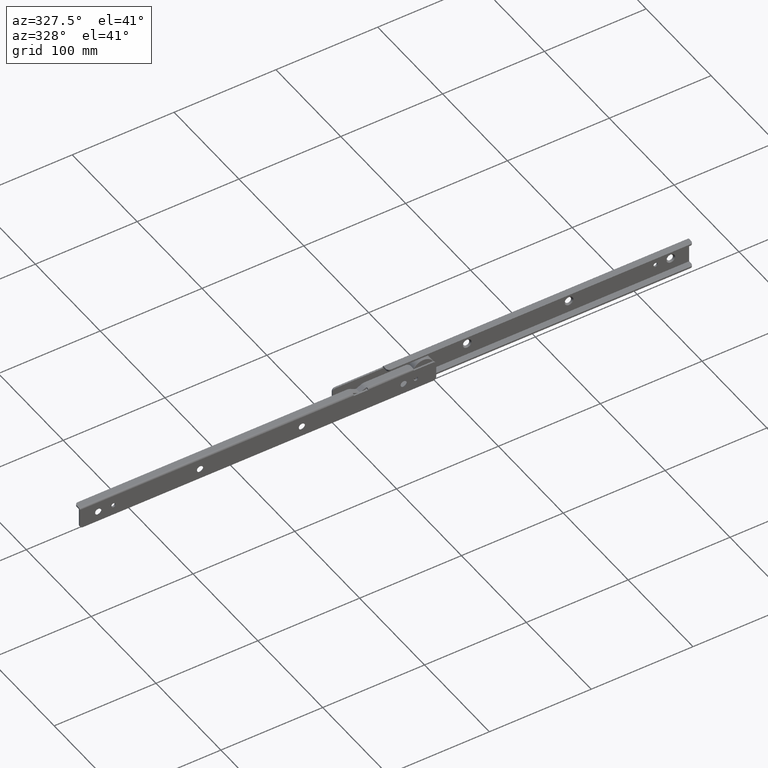
[diagram: clean part render]
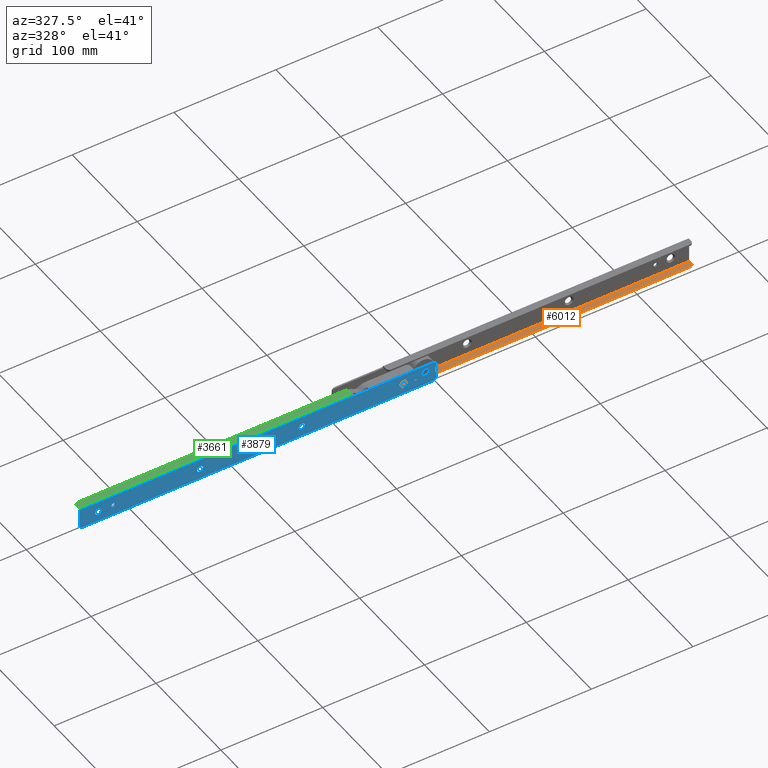
[diagram: same view with three faces highlighted in distinct colors, each labeled with its STEP entity id]
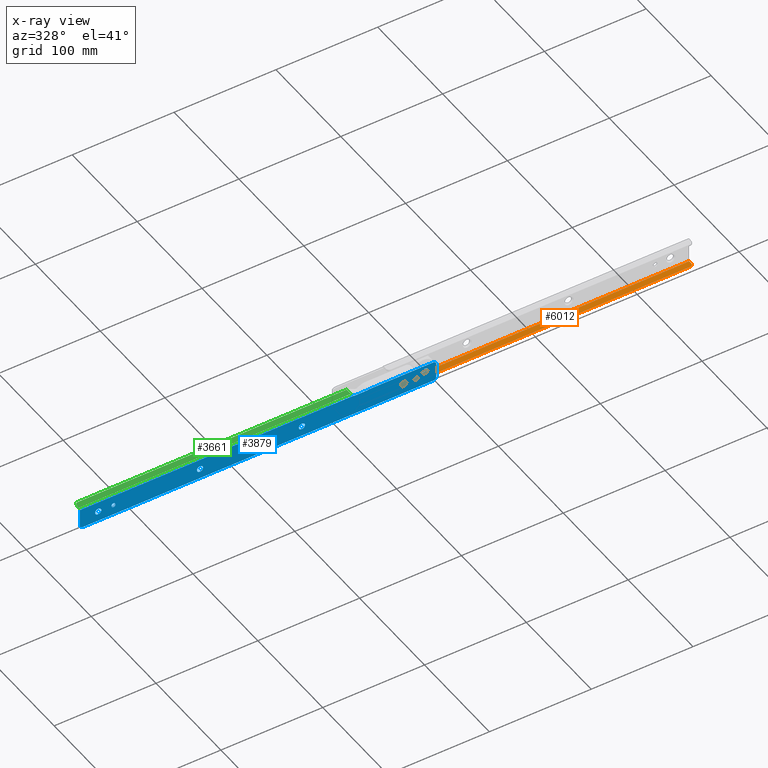
[diagram: x-ray of the same camera — body ghosted, the three highlighted faces saturated]
A machine part, auxiliary view with three faces highlighted in distinct colors.
The next image is the same camera in x-ray (body ghosted, the three faces saturated) — at least one of them is partly hidden behind the body in this view.
Their STEP definitions:

[orange] entity #6012 — the highlighted face is a freeform B-spline surface patch.
#5328=CARTESIAN_POINT('',(22.0,-5.0,-18.600000000000001));
#5329=VERTEX_POINT('',#5328);
#5330=CARTESIAN_POINT('',(25.0,-8.0,-18.600000000000001));
#5331=VERTEX_POINT('',#5330);
#5332=CARTESIAN_POINT('',(22.0,-5.0,-18.600000000000001));
#5333=CARTESIAN_POINT('',(22.000000000000007,-8.0,-18.599999999999991));
#5334=CARTESIAN_POINT('',(25.0,-8.0,-18.600000000000001));
#5342=(BOUNDED_CURVE()B_SPLINE_CURVE(2,(#5332,#5333,#5334),.UNSPECIFIED.,.F.,.U.)CURVE()GEOMETRIC_REPRESENTATION_ITEM()QUASI_UNIFORM_CURVE()RATIONAL_B_SPLINE_CURVE((1.0,0.707106781186548,1.0))REPRESENTATION_ITEM(''));
#5343=EDGE_CURVE('',#5329,#5331,#5342,.T.);
#5389=CARTESIAN_POINT('',(347.0,-8.0,-18.600000000000001));
#5390=VERTEX_POINT('',#5389);
#5391=CARTESIAN_POINT('',(350.0,-5.0,-18.600000000000001));
#5392=VERTEX_POINT('',#5391);
#5393=CARTESIAN_POINT('',(347.0,-8.0,-18.600000000000001));
#5394=CARTESIAN_POINT('',(349.999999999999890,-8.0,-18.599999999999991));
#5395=CARTESIAN_POINT('',(350.0,-5.0,-18.600000000000001));
#5403=(BOUNDED_CURVE()B_SPLINE_CURVE(2,(#5393,#5394,#5395),.UNSPECIFIED.,.F.,.U.)CURVE()GEOMETRIC_REPRESENTATION_ITEM()QUASI_UNIFORM_CURVE()RATIONAL_B_SPLINE_CURVE((1.0,0.707106781186548,1.0))REPRESENTATION_ITEM(''));
#5404=EDGE_CURVE('',#5390,#5392,#5403,.T.);
#5689=CARTESIAN_POINT('',(22.0,-1.599999999999935,-18.600000000000001));
#5690=VERTEX_POINT('',#5689);
#5725=CARTESIAN_POINT('',(22.0,-1.599999999999935,-18.600000000000001));
#5726=CARTESIAN_POINT('',(22.0,-5.0,-18.600000000000001));
#5727=QUASI_UNIFORM_CURVE('',1,(#5725,#5726),.UNSPECIFIED.,.F.,.U.);
#5728=EDGE_CURVE('',#5690,#5329,#5727,.T.);
#5787=CARTESIAN_POINT('',(350.0,-1.599999999999910,-18.600000000000001));
#5788=VERTEX_POINT('',#5787);
#5794=CARTESIAN_POINT('',(350.0,-1.599999999999910,-18.600000000000001));
#5795=CARTESIAN_POINT('',(350.0,-5.0,-18.600000000000001));
#5796=QUASI_UNIFORM_CURVE('',1,(#5794,#5795),.UNSPECIFIED.,.F.,.U.);
#5797=EDGE_CURVE('',#5788,#5392,#5796,.T.);
#5986=CARTESIAN_POINT('',(347.0,-8.0,-18.600000000000001));
#5987=CARTESIAN_POINT('',(25.0,-8.0,-18.600000000000001));
#5988=QUASI_UNIFORM_CURVE('',1,(#5986,#5987),.UNSPECIFIED.,.F.,.U.);
#5989=EDGE_CURVE('',#5390,#5331,#5988,.T.);
#5995=CARTESIAN_POINT('',(366.383599364272300,-8.319679987595562,-18.600000000000001));
#5996=CARTESIAN_POINT('',(5.616391838082091,-8.319679987595562,-18.600000000000001));
#5997=CARTESIAN_POINT('',(366.383599364272300,-1.280319840742970,-18.600000000000001));
#5998=CARTESIAN_POINT('',(5.616391838082091,-1.280319840742970,-18.600000000000001));
#5999=B_SPLINE_SURFACE_WITH_KNOTS('',1,1,((#5995,#5997),(#5996,#5998)),.UNSPECIFIED.,.F.,.F.,.U.,(2,2),(2,2),(0.0,360.767207526190190),(0.0,7.039360146852591),.UNSPECIFIED.);
#6000=ORIENTED_EDGE('',*,*,#5989,.F.);
#6001=ORIENTED_EDGE('',*,*,#5404,.T.);
#6002=ORIENTED_EDGE('',*,*,#5797,.F.);
#6003=CARTESIAN_POINT('',(350.0,-1.599999999999910,-18.600000000000001));
#6004=CARTESIAN_POINT('',(22.0,-1.599999999999935,-18.600000000000001));
#6005=QUASI_UNIFORM_CURVE('',1,(#6003,#6004),.UNSPECIFIED.,.F.,.U.);
#6006=EDGE_CURVE('',#5788,#5690,#6005,.T.);
#6007=ORIENTED_EDGE('',*,*,#6006,.T.);
#6008=ORIENTED_EDGE('',*,*,#5728,.T.);
#6009=ORIENTED_EDGE('',*,*,#5343,.T.);
#6010=EDGE_LOOP('',(#6000,#6001,#6002,#6007,#6008,#6009));
#6011=FACE_OUTER_BOUND('',#6010,.T.);
#6012=ADVANCED_FACE('',(#6011),#5999,.F.);

[blue] entity #3879 — the highlighted face is a freeform B-spline surface patch.
#1401=CARTESIAN_POINT('',(65.990752002969700,-11.999999993834500,-11.835377328537801));
#1402=VERTEX_POINT('',#1401);
#1408=CARTESIAN_POINT('',(63.0,-12.0,-8.599999999999799));
#1409=VERTEX_POINT('',#1408);
#1410=CARTESIAN_POINT('',(65.990752002969700,-11.999999993834498,-11.835377328537804));
#1411=CARTESIAN_POINT('',(66.000000000000014,-12.000000000000005,-11.717870362174331));
#1412=CARTESIAN_POINT('',(66.0,-12.0,-11.599999999999801));
#1413=CARTESIAN_POINT('',(66.0,-12.0,-8.599999999999799));
#1414=CARTESIAN_POINT('',(63.0,-12.0,-8.599999999999799));
#1422=(BOUNDED_CURVE()B_SPLINE_CURVE(2,(#1410,#1411,#1412,#1413,#1414),.UNSPECIFIED.,.F.,.U.)B_SPLINE_CURVE_WITH_KNOTS((3,2,3),(0.736331295937097,0.750000000000000,1.0),.UNSPECIFIED.)CURVE()GEOMETRIC_REPRESENTATION_ITEM()RATIONAL_B_SPLINE_CURVE((0.969723346372311,0.983986117080031,1.0,0.707106781186548,1.0))REPRESENTATION_ITEM(''));
#1423=EDGE_CURVE('',#1402,#1409,#1422,.T.);
#1425=CARTESIAN_POINT('',(60.009247997030300,-11.999999993834500,-11.364622671461790));
#1426=VERTEX_POINT('',#1425);
#1427=CARTESIAN_POINT('',(63.0,-12.0,-8.599999999999799));
#1428=CARTESIAN_POINT('',(60.226828601223161,-12.0,-8.599999999999799));
#1429=CARTESIAN_POINT('',(60.009247997030307,-11.999999993834498,-11.364622671461788));
#1437=(BOUNDED_CURVE()B_SPLINE_CURVE(2,(#1427,#1428,#1429),.UNSPECIFIED.,.F.,.U.)B_SPLINE_CURVE_WITH_KNOTS((3,3),(0.0,0.236331295937097),.UNSPECIFIED.)CURVE()GEOMETRIC_REPRESENTATION_ITEM()RATIONAL_B_SPLINE_CURVE((1.0,0.723120664106517,0.969723346372310))REPRESENTATION_ITEM(''));
#1438=EDGE_CURVE('',#1409,#1426,#1437,.T.);
#1484=CARTESIAN_POINT('',(63.0,-12.0,-14.599999999999801));
#1485=VERTEX_POINT('',#1484);
#1486=CARTESIAN_POINT('',(60.009247997030300,-11.999999993834496,-11.364622671461788));
#1487=CARTESIAN_POINT('',(60.0,-11.999999999999996,-11.482129637825269));
#1488=CARTESIAN_POINT('',(60.0,-12.0,-11.599999999999801));
#1489=CARTESIAN_POINT('',(60.0,-12.0,-14.599999999999794));
#1490=CARTESIAN_POINT('',(63.0,-12.0,-14.599999999999801));
#1498=(BOUNDED_CURVE()B_SPLINE_CURVE(2,(#1486,#1487,#1488,#1489,#1490),.UNSPECIFIED.,.F.,.U.)B_SPLINE_CURVE_WITH_KNOTS((3,2,3),(0.236331295937097,0.250000000000000,0.500000000000000),.UNSPECIFIED.)CURVE()GEOMETRIC_REPRESENTATION_ITEM()RATIONAL_B_SPLINE_CURVE((0.969723346372310,0.983986117080031,1.0,0.707106781186548,1.0))REPRESENTATION_ITEM(''));
#1499=EDGE_CURVE('',#1426,#1485,#1498,.T.);
#1501=CARTESIAN_POINT('',(63.0,-12.0,-14.599999999999801));
#1502=CARTESIAN_POINT('',(65.773171398776867,-12.0,-14.599999999999802));
#1503=CARTESIAN_POINT('',(65.990752002969700,-11.999999993834498,-11.835377328537804));
#1511=(BOUNDED_CURVE()B_SPLINE_CURVE(2,(#1501,#1502,#1503),.UNSPECIFIED.,.F.,.U.)B_SPLINE_CURVE_WITH_KNOTS((3,3),(0.500000000000000,0.736331295937098),.UNSPECIFIED.)CURVE()GEOMETRIC_REPRESENTATION_ITEM()RATIONAL_B_SPLINE_CURVE((1.0,0.723120664106515,0.969723346372313))REPRESENTATION_ITEM(''));
#1512=EDGE_CURVE('',#1485,#1402,#1511,.T.);
#1583=CARTESIAN_POINT('',(-34.009247997030300,-11.999999993834489,-11.835377328537801));
#1584=VERTEX_POINT('',#1583);
#1590=CARTESIAN_POINT('',(-37.0,-12.0,-8.599999999999799));
#1591=VERTEX_POINT('',#1590);
#1592=CARTESIAN_POINT('',(-34.009247997030300,-11.999999993834493,-11.835377328537806));
#1593=CARTESIAN_POINT('',(-33.999999999999993,-12.000000000000007,-11.717870362174333));
#1594=CARTESIAN_POINT('',(-33.999999999999993,-12.0,-11.599999999999801));
#1595=CARTESIAN_POINT('',(-33.999999999999993,-12.0,-8.599999999999799));
#1596=CARTESIAN_POINT('',(-37.0,-12.0,-8.599999999999799));
#1604=(BOUNDED_CURVE()B_SPLINE_CURVE(2,(#1592,#1593,#1594,#1595,#1596),.UNSPECIFIED.,.F.,.U.)B_SPLINE_CURVE_WITH_KNOTS((3,2,3),(0.736331295937097,0.750000000000000,1.0),.UNSPECIFIED.)CURVE()GEOMETRIC_REPRESENTATION_ITEM()RATIONAL_B_SPLINE_CURVE((0.969723346372311,0.983986117080031,1.0,0.707106781186548,1.0))REPRESENTATION_ITEM(''));
#1605=EDGE_CURVE('',#1584,#1591,#1604,.T.);
#1607=CARTESIAN_POINT('',(-39.990752002969700,-11.999999993834500,-11.364622671461790));
#1608=VERTEX_POINT('',#1607);
#1609=CARTESIAN_POINT('',(-37.0,-12.0,-8.599999999999799));
#1610=CARTESIAN_POINT('',(-39.773171398776846,-12.0,-8.599999999999799));
#1611=CARTESIAN_POINT('',(-39.990752002969693,-11.999999993834496,-11.364622671461799));
#1619=(BOUNDED_CURVE()B_SPLINE_CURVE(2,(#1609,#1610,#1611),.UNSPECIFIED.,.F.,.U.)B_SPLINE_CURVE_WITH_KNOTS((3,3),(0.0,0.236331295937097),.UNSPECIFIED.)CURVE()GEOMETRIC_REPRESENTATION_ITEM()RATIONAL_B_SPLINE_CURVE((1.0,0.723120664106517,0.969723346372310))REPRESENTATION_ITEM(''));
#1620=EDGE_CURVE('',#1591,#1608,#1619,.T.);
#1666=CARTESIAN_POINT('',(-37.0,-12.0,-14.599999999999801));
#1667=VERTEX_POINT('',#1666);
#1668=CARTESIAN_POINT('',(-39.990752002969700,-11.999999993834495,-11.364622671461795));
#1669=CARTESIAN_POINT('',(-40.0,-11.999999999999996,-11.482129637825267));
#1670=CARTESIAN_POINT('',(-40.0,-12.0,-11.599999999999801));
#1671=CARTESIAN_POINT('',(-39.999999999999993,-12.0,-14.599999999999794));
#1672=CARTESIAN_POINT('',(-37.0,-12.0,-14.599999999999801));
#1680=(BOUNDED_CURVE()B_SPLINE_CURVE(2,(#1668,#1669,#1670,#1671,#1672),.UNSPECIFIED.,.F.,.U.)B_SPLINE_CURVE_WITH_KNOTS((3,2,3),(0.236331295937097,0.250000000000000,0.500000000000000),.UNSPECIFIED.)CURVE()GEOMETRIC_REPRESENTATION_ITEM()RATIONAL_B_SPLINE_CURVE((0.969723346372311,0.983986117080031,1.0,0.707106781186548,1.0))REPRESENTATION_ITEM(''));
#1681=EDGE_CURVE('',#1608,#1667,#1680,.T.);
#1683=CARTESIAN_POINT('',(-37.0,-12.0,-14.599999999999801));
#1684=CARTESIAN_POINT('',(-34.226828601223126,-12.0,-14.599999999999802));
#1685=CARTESIAN_POINT('',(-34.009247997030307,-11.999999993834489,-11.835377328537804));
#1693=(BOUNDED_CURVE()B_SPLINE_CURVE(2,(#1683,#1684,#1685),.UNSPECIFIED.,.F.,.U.)B_SPLINE_CURVE_WITH_KNOTS((3,3),(0.500000000000000,0.736331295937098),.UNSPECIFIED.)CURVE()GEOMETRIC_REPRESENTATION_ITEM()RATIONAL_B_SPLINE_CURVE((1.0,0.723120664106515,0.969723346372313))REPRESENTATION_ITEM(''));
#1694=EDGE_CURVE('',#1667,#1584,#1693,.T.);
#1765=CARTESIAN_POINT('',(-134.009247997030290,-11.999999993834489,-11.835377328537810));
#1766=VERTEX_POINT('',#1765);
#1772=CARTESIAN_POINT('',(-137.0,-12.0,-8.599999999999799));
#1773=VERTEX_POINT('',#1772);
#1774=CARTESIAN_POINT('',(-134.009247997030290,-11.999999993834489,-11.835377328537804));
#1775=CARTESIAN_POINT('',(-134.000000000000060,-11.999999999999998,-11.717870362174326));
#1776=CARTESIAN_POINT('',(-134.0,-12.0,-11.599999999999801));
#1777=CARTESIAN_POINT('',(-134.0,-12.0,-8.599999999999799));
#1778=CARTESIAN_POINT('',(-137.0,-12.0,-8.599999999999799));
#1786=(BOUNDED_CURVE()B_SPLINE_CURVE(2,(#1774,#1775,#1776,#1777,#1778),.UNSPECIFIED.,.F.,.U.)B_SPLINE_CURVE_WITH_KNOTS((3,2,3),(0.736331295937097,0.750000000000000,1.0),.UNSPECIFIED.)CURVE()GEOMETRIC_REPRESENTATION_ITEM()RATIONAL_B_SPLINE_CURVE((0.969723346372310,0.983986117080031,1.0,0.707106781186548,1.0))REPRESENTATION_ITEM(''));
#1787=EDGE_CURVE('',#1766,#1773,#1786,.T.);
#1789=CARTESIAN_POINT('',(-139.990752002969710,-11.999999993834500,-11.364622671461790));
#1790=VERTEX_POINT('',#1789);
#1791=CARTESIAN_POINT('',(-137.0,-12.0,-8.599999999999799));
#1792=CARTESIAN_POINT('',(-139.773171398776900,-12.0,-8.599999999999799));
#1793=CARTESIAN_POINT('',(-139.990752002969710,-11.999999993834496,-11.364622671461799));
#1801=(BOUNDED_CURVE()B_SPLINE_CURVE(2,(#1791,#1792,#1793),.UNSPECIFIED.,.F.,.U.)B_SPLINE_CURVE_WITH_KNOTS((3,3),(0.0,0.236331295937097),.UNSPECIFIED.)CURVE()GEOMETRIC_REPRESENTATION_ITEM()RATIONAL_B_SPLINE_CURVE((1.0,0.723120664106517,0.969723346372310))REPRESENTATION_ITEM(''));
#1802=EDGE_CURVE('',#1773,#1790,#1801,.T.);
#1848=CARTESIAN_POINT('',(-137.0,-12.0,-14.599999999999801));
#1849=VERTEX_POINT('',#1848);
#1850=CARTESIAN_POINT('',(-139.990752002969690,-11.999999993834495,-11.364622671461795));
#1851=CARTESIAN_POINT('',(-140.000000000000060,-11.999999999999996,-11.482129637825267));
#1852=CARTESIAN_POINT('',(-140.0,-12.0,-11.599999999999801));
#1853=CARTESIAN_POINT('',(-140.0,-12.0,-14.599999999999794));
#1854=CARTESIAN_POINT('',(-137.0,-12.0,-14.599999999999801));
#1862=(BOUNDED_CURVE()B_SPLINE_CURVE(2,(#1850,#1851,#1852,#1853,#1854),.UNSPECIFIED.,.F.,.U.)B_SPLINE_CURVE_WITH_KNOTS((3,2,3),(0.236331295937097,0.250000000000000,0.500000000000000),.UNSPECIFIED.)CURVE()GEOMETRIC_REPRESENTATION_ITEM()RATIONAL_B_SPLINE_CURVE((0.969723346372311,0.983986117080031,1.0,0.707106781186548,1.0))REPRESENTATION_ITEM(''));
#1863=EDGE_CURVE('',#1790,#1849,#1862,.T.);
#1865=CARTESIAN_POINT('',(-137.0,-12.0,-14.599999999999801));
#1866=CARTESIAN_POINT('',(-134.226828601223130,-12.0,-14.599999999999802));
#1867=CARTESIAN_POINT('',(-134.009247997030260,-11.999999993834489,-11.835377328537804));
#1875=(BOUNDED_CURVE()B_SPLINE_CURVE(2,(#1865,#1866,#1867),.UNSPECIFIED.,.F.,.U.)B_SPLINE_CURVE_WITH_KNOTS((3,3),(0.500000000000000,0.736331295937098),.UNSPECIFIED.)CURVE()GEOMETRIC_REPRESENTATION_ITEM()RATIONAL_B_SPLINE_CURVE((1.0,0.723120664106515,0.969723346372313))REPRESENTATION_ITEM(''));
#1876=EDGE_CURVE('',#1849,#1766,#1875,.T.);
#1947=CARTESIAN_POINT('',(-234.009247997030290,-11.999999993834500,-11.835377328537801));
#1948=VERTEX_POINT('',#1947);
#1954=CARTESIAN_POINT('',(-237.0,-12.0,-8.599999999999799));
#1955=VERTEX_POINT('',#1954);
#1956=CARTESIAN_POINT('',(-234.009247997030340,-11.999999993834493,-11.835377328537806));
#1957=CARTESIAN_POINT('',(-234.0,-12.000000000000007,-11.717870362174333));
#1958=CARTESIAN_POINT('',(-234.0,-12.0,-11.599999999999801));
#1959=CARTESIAN_POINT('',(-233.999999999999940,-12.0,-8.599999999999799));
#1960=CARTESIAN_POINT('',(-237.0,-12.0,-8.599999999999799));
#1968=(BOUNDED_CURVE()B_SPLINE_CURVE(2,(#1956,#1957,#1958,#1959,#1960),.UNSPECIFIED.,.F.,.U.)B_SPLINE_CURVE_WITH_KNOTS((3,2,3),(0.736331295937097,0.750000000000000,1.0),.UNSPECIFIED.)CURVE()GEOMETRIC_REPRESENTATION_ITEM()RATIONAL_B_SPLINE_CURVE((0.969723346372311,0.983986117080031,1.0,0.707106781186548,1.0))REPRESENTATION_ITEM(''));
#1969=EDGE_CURVE('',#1948,#1955,#1968,.T.);
#1971=CARTESIAN_POINT('',(-239.990752002969710,-11.999999993834489,-11.364622671461790));
#1972=VERTEX_POINT('',#1971);
#1973=CARTESIAN_POINT('',(-237.0,-12.0,-8.599999999999799));
#1974=CARTESIAN_POINT('',(-239.773171398776780,-12.0,-8.599999999999799));
#1975=CARTESIAN_POINT('',(-239.990752002969660,-11.999999993834495,-11.364622671461797));
#1983=(BOUNDED_CURVE()B_SPLINE_CURVE(2,(#1973,#1974,#1975),.UNSPECIFIED.,.F.,.U.)B_SPLINE_CURVE_WITH_KNOTS((3,3),(0.0,0.236331295937097),.UNSPECIFIED.)CURVE()GEOMETRIC_REPRESENTATION_ITEM()RATIONAL_B_SPLINE_CURVE((1.0,0.723120664106517,0.969723346372310))REPRESENTATION_ITEM(''));
#1984=EDGE_CURVE('',#1955,#1972,#1983,.T.);
#2030=CARTESIAN_POINT('',(-237.0,-12.0,-14.599999999999801));
#2031=VERTEX_POINT('',#2030);
#2032=CARTESIAN_POINT('',(-239.990752002969690,-11.999999993834491,-11.364622671461794));
#2033=CARTESIAN_POINT('',(-240.0,-12.000000000000005,-11.482129637825278));
#2034=CARTESIAN_POINT('',(-240.0,-12.0,-11.599999999999801));
#2035=CARTESIAN_POINT('',(-240.0,-12.0,-14.599999999999794));
#2036=CARTESIAN_POINT('',(-237.0,-12.0,-14.599999999999801));
#2044=(BOUNDED_CURVE()B_SPLINE_CURVE(2,(#2032,#2033,#2034,#2035,#2036),.UNSPECIFIED.,.F.,.U.)B_SPLINE_CURVE_WITH_KNOTS((3,2,3),(0.236331295937097,0.250000000000000,0.500000000000000),.UNSPECIFIED.)CURVE()GEOMETRIC_REPRESENTATION_ITEM()RATIONAL_B_SPLINE_CURVE((0.969723346372311,0.983986117080031,1.0,0.707106781186548,1.0))REPRESENTATION_ITEM(''));
#2045=EDGE_CURVE('',#1972,#2031,#2044,.T.);
#2047=CARTESIAN_POINT('',(-237.0,-12.0,-14.599999999999801));
#2048=CARTESIAN_POINT('',(-234.226828601223100,-12.0,-14.599999999999802));
#2049=CARTESIAN_POINT('',(-234.009247997030310,-11.999999993834498,-11.835377328537804));
#2057=(BOUNDED_CURVE()B_SPLINE_CURVE(2,(#2047,#2048,#2049),.UNSPECIFIED.,.F.,.U.)B_SPLINE_CURVE_WITH_KNOTS((3,3),(0.500000000000000,0.736331295937098),.UNSPECIFIED.)CURVE()GEOMETRIC_REPRESENTATION_ITEM()RATIONAL_B_SPLINE_CURVE((1.0,0.723120664106515,0.969723346372313))REPRESENTATION_ITEM(''));
#2058=EDGE_CURVE('',#2031,#1948,#2057,.T.);
#2118=CARTESIAN_POINT('',(81.070621898061887,-12.0,-7.251799000740215));
#2119=VERTEX_POINT('',#2118);
#2125=CARTESIAN_POINT('',(84.0,-12.0,-10.549999999999800));
#2126=VERTEX_POINT('',#2125);
#2127=CARTESIAN_POINT('',(81.070621898061887,-12.000000000000004,-7.251799000740215));
#2128=CARTESIAN_POINT('',(81.050000000000026,-11.999999999999998,-7.425288839930281));
#2129=CARTESIAN_POINT('',(81.050000000000011,-12.0,-7.599999999999800));
#2130=CARTESIAN_POINT('',(81.050000000000011,-12.0,-10.549999999999802));
#2131=CARTESIAN_POINT('',(84.0,-12.0,-10.549999999999800));
#2139=(BOUNDED_CURVE()B_SPLINE_CURVE(2,(#2127,#2128,#2129,#2130,#2131),.UNSPECIFIED.,.F.,.U.)B_SPLINE_CURVE_WITH_KNOTS((3,2,3),(0.229562472705393,0.250000000000000,0.500000000000000),.UNSPECIFIED.)CURVE()GEOMETRIC_REPRESENTATION_ITEM()RATIONAL_B_SPLINE_CURVE((0.956026752599761,0.976055947384379,1.0,0.707106781186548,1.0))REPRESENTATION_ITEM(''));
#2140=EDGE_CURVE('',#2119,#2126,#2139,.T.);
#2142=CARTESIAN_POINT('',(86.944497655040465,-12.0,-7.780093196598660));
#2143=VERTEX_POINT('',#2142);
#2144=CARTESIAN_POINT('',(84.0,-12.0,-10.549999999999800));
#2145=CARTESIAN_POINT('',(86.775082887984254,-12.0,-10.549999999999800));
#2146=CARTESIAN_POINT('',(86.944497655040465,-12.0,-7.780093196598660));
#2154=(BOUNDED_CURVE()B_SPLINE_CURVE(2,(#2144,#2145,#2146),.UNSPECIFIED.,.F.,.U.)B_SPLINE_CURVE_WITH_KNOTS((3,3),(0.500000000000000,0.739332961659366),.UNSPECIFIED.)CURVE()GEOMETRIC_REPRESENTATION_ITEM()RATIONAL_B_SPLINE_CURVE((1.0,0.719603993965726,0.976072040424575))REPRESENTATION_ITEM(''));
#2155=EDGE_CURVE('',#2126,#2143,#2154,.T.);
#2229=CARTESIAN_POINT('',(84.0,-12.0,-4.649999999999801));
#2230=VERTEX_POINT('',#2229);
#2231=CARTESIAN_POINT('',(86.944497655040465,-12.000000000000004,-7.780093196598660));
#2232=CARTESIAN_POINT('',(86.950000000000003,-12.000000000000002,-7.690130656715608));
#2233=CARTESIAN_POINT('',(86.950000000000003,-12.0,-7.599999999999800));
#2234=CARTESIAN_POINT('',(86.950000000000003,-12.0,-4.649999999999801));
#2235=CARTESIAN_POINT('',(84.0,-12.0,-4.649999999999801));
#2243=(BOUNDED_CURVE()B_SPLINE_CURVE(2,(#2231,#2232,#2233,#2234,#2235),.UNSPECIFIED.,.F.,.U.)B_SPLINE_CURVE_WITH_KNOTS((3,2,3),(0.739332961659366,0.750000000000000,1.0),.UNSPECIFIED.)CURVE()GEOMETRIC_REPRESENTATION_ITEM()RATIONAL_B_SPLINE_CURVE((0.976072040424574,0.987502787220821,1.0,0.707106781186548,1.0))REPRESENTATION_ITEM(''));
#2244=EDGE_CURVE('',#2143,#2230,#2243,.T.);
#2246=CARTESIAN_POINT('',(84.0,-12.0,-4.649999999999801));
#2247=CARTESIAN_POINT('',(81.379885161093497,-12.0,-4.649999999999799));
#2248=CARTESIAN_POINT('',(81.070621898061887,-11.999999999999996,-7.251799000740215));
#2256=(BOUNDED_CURVE()B_SPLINE_CURVE(2,(#2246,#2247,#2248),.UNSPECIFIED.,.F.,.U.)B_SPLINE_CURVE_WITH_KNOTS((3,3),(0.0,0.229562472705393),.UNSPECIFIED.)CURVE()GEOMETRIC_REPRESENTATION_ITEM()RATIONAL_B_SPLINE_CURVE((1.0,0.731050833802168,0.956026752599760))REPRESENTATION_ITEM(''));
#2257=EDGE_CURVE('',#2230,#2119,#2256,.T.);
#2304=CARTESIAN_POINT('',(73.013980948035339,-12.0,-11.363931524269971));
#2305=VERTEX_POINT('',#2304);
#2311=CARTESIAN_POINT('',(75.0,-12.0,-13.599999999999801));
#2312=VERTEX_POINT('',#2311);
#2313=CARTESIAN_POINT('',(73.013980948035339,-12.000000000000002,-11.363931524269965));
#2314=CARTESIAN_POINT('',(73.000000000000014,-12.000000000000002,-11.481551754211830));
#2315=CARTESIAN_POINT('',(73.0,-12.0,-11.599999999999801));
#2316=CARTESIAN_POINT('',(72.999999999999986,-12.0,-13.599999999999799));
#2317=CARTESIAN_POINT('',(75.0,-12.0,-13.599999999999801));
#2325=(BOUNDED_CURVE()B_SPLINE_CURVE(2,(#2313,#2314,#2315,#2316,#2317),.UNSPECIFIED.,.F.,.U.)B_SPLINE_CURVE_WITH_KNOTS((3,2,3),(0.229562472423632,0.250000000000000,0.500000000000000),.UNSPECIFIED.)CURVE()GEOMETRIC_REPRESENTATION_ITEM()RATIONAL_B_SPLINE_CURVE((0.956026752047497,0.976055947054276,1.0,0.707106781186548,1.0))REPRESENTATION_ITEM(''));
#2326=EDGE_CURVE('',#2305,#2312,#2325,.T.);
#2328=CARTESIAN_POINT('',(76.996269596842609,-12.0,-11.722097079087931));
#2329=VERTEX_POINT('',#2328);
#2330=CARTESIAN_POINT('',(75.0,-12.0,-13.599999999999801));
#2331=CARTESIAN_POINT('',(76.881412133776621,-12.000000000000002,-13.599999999999799));
#2332=CARTESIAN_POINT('',(76.996269596842609,-12.000000000000004,-11.722097079087929));
#2340=(BOUNDED_CURVE()B_SPLINE_CURVE(2,(#2330,#2331,#2332),.UNSPECIFIED.,.F.,.U.)B_SPLINE_CURVE_WITH_KNOTS((3,3),(0.500000000000000,0.739332962238785),.UNSPECIFIED.)CURVE()GEOMETRIC_REPRESENTATION_ITEM()RATIONAL_B_SPLINE_CURVE((1.0,0.719603993286895,0.976072041666380))REPRESENTATION_ITEM(''));
#2341=EDGE_CURVE('',#2312,#2329,#2340,.T.);
#2415=CARTESIAN_POINT('',(75.0,-12.0,-9.599999999999799));
#2416=VERTEX_POINT('',#2415);
#2417=CARTESIAN_POINT('',(76.996269596842609,-11.999999999999998,-11.722097079087932));
#2418=CARTESIAN_POINT('',(77.0,-12.000000000000004,-11.661105526615451));
#2419=CARTESIAN_POINT('',(77.0,-12.0,-11.599999999999801));
#2420=CARTESIAN_POINT('',(77.000000000000014,-12.0,-9.599999999999799));
#2421=CARTESIAN_POINT('',(75.0,-12.0,-9.599999999999799));
#2429=(BOUNDED_CURVE()B_SPLINE_CURVE(2,(#2417,#2418,#2419,#2420,#2421),.UNSPECIFIED.,.F.,.U.)B_SPLINE_CURVE_WITH_KNOTS((3,2,3),(0.739332962238784,0.750000000000000,1.0),.UNSPECIFIED.)CURVE()GEOMETRIC_REPRESENTATION_ITEM()RATIONAL_B_SPLINE_CURVE((0.976072041666378,0.987502787899651,1.0,0.707106781186548,1.0))REPRESENTATION_ITEM(''));
#2430=EDGE_CURVE('',#2329,#2416,#2429,.T.);
#2432=CARTESIAN_POINT('',(75.0,-12.0,-9.599999999999799));
#2433=CARTESIAN_POINT('',(73.223650959655913,-12.0,-9.599999999999799));
#2434=CARTESIAN_POINT('',(73.013980948035339,-12.0,-11.363931524269963));
#2442=(BOUNDED_CURVE()B_SPLINE_CURVE(2,(#2432,#2433,#2434),.UNSPECIFIED.,.F.,.U.)B_SPLINE_CURVE_WITH_KNOTS((3,3),(0.0,0.229562472423632),.UNSPECIFIED.)CURVE()GEOMETRIC_REPRESENTATION_ITEM()RATIONAL_B_SPLINE_CURVE((1.0,0.731050834132272,0.956026752047498))REPRESENTATION_ITEM(''));
#2443=EDGE_CURVE('',#2416,#2305,#2442,.T.);
#2490=CARTESIAN_POINT('',(-223.986019051964690,-12.0,-11.363931524269971));
#2491=VERTEX_POINT('',#2490);
#2497=CARTESIAN_POINT('',(-222.0,-12.0,-13.599999999999801));
#2498=VERTEX_POINT('',#2497);
#2499=CARTESIAN_POINT('',(-223.986019051964660,-11.999999999999998,-11.363931524269972));
#2500=CARTESIAN_POINT('',(-224.0,-12.000000000000004,-11.481551754211834));
#2501=CARTESIAN_POINT('',(-224.0,-12.0,-11.599999999999801));
#2502=CARTESIAN_POINT('',(-224.000000000000060,-12.0,-13.599999999999799));
#2503=CARTESIAN_POINT('',(-222.0,-12.0,-13.599999999999801));
#2511=(BOUNDED_CURVE()B_SPLINE_CURVE(2,(#2499,#2500,#2501,#2502,#2503),.UNSPECIFIED.,.F.,.U.)B_SPLINE_CURVE_WITH_KNOTS((3,2,3),(0.229562472423633,0.250000000000000,0.500000000000000),.UNSPECIFIED.)CURVE()GEOMETRIC_REPRESENTATION_ITEM()RATIONAL_B_SPLINE_CURVE((0.956026752047499,0.976055947054276,1.0,0.707106781186548,1.0))REPRESENTATION_ITEM(''));
#2512=EDGE_CURVE('',#2491,#2498,#2511,.T.);
#2514=CARTESIAN_POINT('',(-220.003730403157390,-12.0,-11.722097079087931));
#2515=VERTEX_POINT('',#2514);
#2516=CARTESIAN_POINT('',(-222.0,-12.0,-13.599999999999801));
#2517=CARTESIAN_POINT('',(-220.118587866223350,-12.000000000000002,-13.599999999999799));
#2518=CARTESIAN_POINT('',(-220.003730403157390,-12.000000000000004,-11.722097079087929));
#2526=(BOUNDED_CURVE()B_SPLINE_CURVE(2,(#2516,#2517,#2518),.UNSPECIFIED.,.F.,.U.)B_SPLINE_CURVE_WITH_KNOTS((3,3),(0.500000000000000,0.739332962238785),.UNSPECIFIED.)CURVE()GEOMETRIC_REPRESENTATION_ITEM()RATIONAL_B_SPLINE_CURVE((1.0,0.719603993286895,0.976072041666380))REPRESENTATION_ITEM(''));
#2527=EDGE_CURVE('',#2498,#2515,#2526,.T.);
#2601=CARTESIAN_POINT('',(-222.0,-12.0,-9.599999999999799));
#2602=VERTEX_POINT('',#2601);
#2603=CARTESIAN_POINT('',(-220.003730403157360,-12.000000000000005,-11.722097079087927));
#2604=CARTESIAN_POINT('',(-219.999999999999940,-12.000000000000002,-11.661105526615449));
#2605=CARTESIAN_POINT('',(-220.0,-12.0,-11.599999999999801));
#2606=CARTESIAN_POINT('',(-220.000000000000030,-12.0,-9.599999999999799));
#2607=CARTESIAN_POINT('',(-222.0,-12.0,-9.599999999999799));
#2615=(BOUNDED_CURVE()B_SPLINE_CURVE(2,(#2603,#2604,#2605,#2606,#2607),.UNSPECIFIED.,.F.,.U.)B_SPLINE_CURVE_WITH_KNOTS((3,2,3),(0.739332962238784,0.750000000000000,1.0),.UNSPECIFIED.)CURVE()GEOMETRIC_REPRESENTATION_ITEM()RATIONAL_B_SPLINE_CURVE((0.976072041666378,0.987502787899652,1.0,0.707106781186548,1.0))REPRESENTATION_ITEM(''));
#2616=EDGE_CURVE('',#2515,#2602,#2615,.T.);
#2618=CARTESIAN_POINT('',(-222.0,-12.0,-9.599999999999799));
#2619=CARTESIAN_POINT('',(-223.776349040344090,-12.0,-9.599999999999803));
#2620=CARTESIAN_POINT('',(-223.986019051964720,-12.000000000000005,-11.363931524269969));
#2628=(BOUNDED_CURVE()B_SPLINE_CURVE(2,(#2618,#2619,#2620),.UNSPECIFIED.,.F.,.U.)B_SPLINE_CURVE_WITH_KNOTS((3,3),(0.0,0.229562472423633),.UNSPECIFIED.)CURVE()GEOMETRIC_REPRESENTATION_ITEM()RATIONAL_B_SPLINE_CURVE((1.0,0.731050834132271,0.956026752047499))REPRESENTATION_ITEM(''));
#2629=EDGE_CURVE('',#2602,#2491,#2628,.T.);
#3061=CARTESIAN_POINT('',(14.0,-12.0,-1.999999999999800));
#3062=VERTEX_POINT('',#3061);
#3068=CARTESIAN_POINT('',(28.0,-12.0,-1.999999999999800));
#3069=VERTEX_POINT('',#3068);
#3070=CARTESIAN_POINT('',(28.0,-12.0,-1.999999999999800));
#3071=CARTESIAN_POINT('',(14.0,-12.0,-1.999999999999800));
#3072=QUASI_UNIFORM_CURVE('',1,(#3070,#3071),.UNSPECIFIED.,.F.,.U.);
#3073=EDGE_CURVE('',#3069,#3062,#3072,.T.);
#3097=CARTESIAN_POINT('',(92.0,-12.0,-21.600000000000001));
#3098=VERTEX_POINT('',#3097);
#3099=CARTESIAN_POINT('',(95.0,-12.0,-18.600000000000001));
#3100=VERTEX_POINT('',#3099);
#3101=CARTESIAN_POINT('',(92.0,-12.0,-21.600000000000001));
#3102=CARTESIAN_POINT('',(95.000000000000014,-12.0,-21.600000000000005));
#3103=CARTESIAN_POINT('',(95.0,-12.0,-18.600000000000001));
#3111=(BOUNDED_CURVE()B_SPLINE_CURVE(2,(#3101,#3102,#3103),.UNSPECIFIED.,.F.,.U.)CURVE()GEOMETRIC_REPRESENTATION_ITEM()QUASI_UNIFORM_CURVE()RATIONAL_B_SPLINE_CURVE((1.0,0.707106781186548,1.0))REPRESENTATION_ITEM(''));
#3112=EDGE_CURVE('',#3098,#3100,#3111,.T.);
#3175=CARTESIAN_POINT('',(92.0,-12.0,-1.599999999999795));
#3176=VERTEX_POINT('',#3175);
#3182=CARTESIAN_POINT('',(95.0,-12.0,-4.599999999999800));
#3183=VERTEX_POINT('',#3182);
#3184=CARTESIAN_POINT('',(95.0,-12.0,-4.599999999999800));
#3185=CARTESIAN_POINT('',(95.000000000000014,-12.0,-1.599999999999799));
#3186=CARTESIAN_POINT('',(92.0,-12.0,-1.599999999999800));
#3194=(BOUNDED_CURVE()B_SPLINE_CURVE(2,(#3184,#3185,#3186),.UNSPECIFIED.,.F.,.U.)CURVE()GEOMETRIC_REPRESENTATION_ITEM()QUASI_UNIFORM_CURVE()RATIONAL_B_SPLINE_CURVE((1.0,0.707106781186548,1.0))REPRESENTATION_ITEM(''));
#3195=EDGE_CURVE('',#3183,#3176,#3194,.T.);
#3341=CARTESIAN_POINT('',(-255.0,-12.0,-18.600000000000001));
#3342=VERTEX_POINT('',#3341);
#3343=CARTESIAN_POINT('',(-252.0,-12.0,-21.600000000000001));
#3344=VERTEX_POINT('',#3343);
#3345=CARTESIAN_POINT('',(-255.0,-12.0,-18.600000000000001));
#3346=CARTESIAN_POINT('',(-254.999999999999940,-12.0,-21.600000000000005));
#3347=CARTESIAN_POINT('',(-252.0,-12.0,-21.600000000000001));
#3355=(BOUNDED_CURVE()B_SPLINE_CURVE(2,(#3345,#3346,#3347),.UNSPECIFIED.,.F.,.U.)CURVE()GEOMETRIC_REPRESENTATION_ITEM()QUASI_UNIFORM_CURVE()RATIONAL_B_SPLINE_CURVE((1.0,0.707106781186548,1.0))REPRESENTATION_ITEM(''));
#3356=EDGE_CURVE('',#3342,#3344,#3355,.T.);
#3393=CARTESIAN_POINT('',(73.0,-12.0,-1.599999999999795));
#3394=VERTEX_POINT('',#3393);
#3395=CARTESIAN_POINT('',(92.0,-12.0,-1.599999999999795));
#3396=CARTESIAN_POINT('',(73.0,-12.0,-1.599999999999795));
#3397=QUASI_UNIFORM_CURVE('',1,(#3395,#3396),.UNSPECIFIED.,.F.,.U.);
#3398=EDGE_CURVE('',#3176,#3394,#3397,.T.);
#3464=CARTESIAN_POINT('',(-255.0,-12.0,-1.599999999999795));
#3465=VERTEX_POINT('',#3464);
#3466=CARTESIAN_POINT('',(-255.0,-12.0,-1.599999999999795));
#3467=CARTESIAN_POINT('',(-255.0,-12.0,-18.600000000000001));
#3468=QUASI_UNIFORM_CURVE('',1,(#3466,#3467),.UNSPECIFIED.,.F.,.U.);
#3469=EDGE_CURVE('',#3465,#3342,#3468,.T.);
#3511=CARTESIAN_POINT('',(95.0,-12.0,-4.599999999999800));
#3512=CARTESIAN_POINT('',(95.0,-12.0,-18.600000000000001));
#3513=QUASI_UNIFORM_CURVE('',1,(#3511,#3512),.UNSPECIFIED.,.F.,.U.);
#3514=EDGE_CURVE('',#3183,#3100,#3513,.T.);
#3531=CARTESIAN_POINT('',(92.0,-12.0,-21.600000000000001));
#3532=CARTESIAN_POINT('',(-252.0,-12.0,-21.600000000000001));
#3533=QUASI_UNIFORM_CURVE('',1,(#3531,#3532),.UNSPECIFIED.,.F.,.U.);
#3534=EDGE_CURVE('',#3098,#3344,#3533,.T.);
#3560=CARTESIAN_POINT('',(28.0,-12.0,-1.599999999999795));
#3561=VERTEX_POINT('',#3560);
#3575=CARTESIAN_POINT('',(73.0,-12.0,-1.599999999999795));
#3576=CARTESIAN_POINT('',(28.0,-12.0,-1.599999999999795));
#3577=QUASI_UNIFORM_CURVE('',1,(#3575,#3576),.UNSPECIFIED.,.F.,.U.);
#3578=EDGE_CURVE('',#3394,#3561,#3577,.T.);
#3598=CARTESIAN_POINT('',(14.0,-12.0,-1.599999999999795));
#3599=VERTEX_POINT('',#3598);
#3620=CARTESIAN_POINT('',(14.0,-12.0,-1.599999999999795));
#3621=CARTESIAN_POINT('',(-255.0,-12.0,-1.599999999999795));
#3622=QUASI_UNIFORM_CURVE('',1,(#3620,#3621),.UNSPECIFIED.,.F.,.U.);
#3623=EDGE_CURVE('',#3599,#3465,#3622,.T.);
#3810=CARTESIAN_POINT('',(-272.482499321632080,-12.0,-22.599000336727510));
#3811=CARTESIAN_POINT('',(-272.482499321632080,-12.0,-0.600999484458353));
#3812=CARTESIAN_POINT('',(112.482508709363600,-12.0,-22.599000336727510));
#3813=CARTESIAN_POINT('',(112.482508709363600,-12.0,-0.600999484458353));
#3814=B_SPLINE_SURFACE_WITH_KNOTS('',1,1,((#3810,#3812),(#3811,#3813)),.UNSPECIFIED.,.F.,.F.,.U.,(2,2),(2,2),(0.0,21.998000852269161),(0.0,384.965008030995820),.UNSPECIFIED.);
#3815=CARTESIAN_POINT('',(14.0,-12.0,-1.999999999999800));
#3816=CARTESIAN_POINT('',(14.0,-12.0,-1.599999999999795));
#3817=QUASI_UNIFORM_CURVE('',1,(#3815,#3816),.UNSPECIFIED.,.F.,.U.);
#3818=EDGE_CURVE('',#3062,#3599,#3817,.T.);
#3819=ORIENTED_EDGE('',*,*,#3818,.T.);
#3820=ORIENTED_EDGE('',*,*,#3623,.T.);
#3821=ORIENTED_EDGE('',*,*,#3469,.T.);
#3822=ORIENTED_EDGE('',*,*,#3356,.T.);
#3823=ORIENTED_EDGE('',*,*,#3534,.F.);
#3824=ORIENTED_EDGE('',*,*,#3112,.T.);
#3825=ORIENTED_EDGE('',*,*,#3514,.F.);
#3826=ORIENTED_EDGE('',*,*,#3195,.T.);
#3827=ORIENTED_EDGE('',*,*,#3398,.T.);
#3828=ORIENTED_EDGE('',*,*,#3578,.T.);
#3829=CARTESIAN_POINT('',(28.0,-12.0,-1.599999999999795));
#3830=CARTESIAN_POINT('',(28.0,-12.0,-1.999999999999800));
#3831=QUASI_UNIFORM_CURVE('',1,(#3829,#3830),.UNSPECIFIED.,.F.,.U.);
#3832=EDGE_CURVE('',#3561,#3069,#3831,.T.);
#3833=ORIENTED_EDGE('',*,*,#3832,.T.);
#3834=ORIENTED_EDGE('',*,*,#3073,.T.);
#3835=EDGE_LOOP('',(#3819,#3820,#3821,#3822,#3823,#3824,#3825,#3826,#3827,#3828,#3833,#3834));
#3836=FACE_OUTER_BOUND('',#3835,.T.);
#3837=ORIENTED_EDGE('',*,*,#2527,.F.);
#3838=ORIENTED_EDGE('',*,*,#2512,.F.);
#3839=ORIENTED_EDGE('',*,*,#2629,.F.);
#3840=ORIENTED_EDGE('',*,*,#2616,.F.);
#3841=EDGE_LOOP('',(#3837,#3838,#3839,#3840));
#3842=FACE_BOUND('',#3841,.T.);
#3843=ORIENTED_EDGE('',*,*,#2341,.F.);
#3844=ORIENTED_EDGE('',*,*,#2326,.F.);
#3845=ORIENTED_EDGE('',*,*,#2443,.F.);
#3846=ORIENTED_EDGE('',*,*,#2430,.F.);
#3847=EDGE_LOOP('',(#3843,#3844,#3845,#3846));
#3848=FACE_BOUND('',#3847,.T.);
#3849=ORIENTED_EDGE('',*,*,#2155,.F.);
#3850=ORIENTED_EDGE('',*,*,#2140,.F.);
#3851=ORIENTED_EDGE('',*,*,#2257,.F.);
#3852=ORIENTED_EDGE('',*,*,#2244,.F.);
#3853=EDGE_LOOP('',(#3849,#3850,#3851,#3852));
#3854=FACE_BOUND('',#3853,.T.);
#3855=ORIENTED_EDGE('',*,*,#2058,.F.);
#3856=ORIENTED_EDGE('',*,*,#2045,.F.);
#3857=ORIENTED_EDGE('',*,*,#1984,.F.);
#3858=ORIENTED_EDGE('',*,*,#1969,.F.);
#3859=EDGE_LOOP('',(#3855,#3856,#3857,#3858));
#3860=FACE_BOUND('',#3859,.T.);
#3861=ORIENTED_EDGE('',*,*,#1876,.F.);
#3862=ORIENTED_EDGE('',*,*,#1863,.F.);
#3863=ORIENTED_EDGE('',*,*,#1802,.F.);
#3864=ORIENTED_EDGE('',*,*,#1787,.F.);
#3865=EDGE_LOOP('',(#3861,#3862,#3863,#3864));
#3866=FACE_BOUND('',#3865,.T.);
#3867=ORIENTED_EDGE('',*,*,#1694,.F.);
#3868=ORIENTED_EDGE('',*,*,#1681,.F.);
#3869=ORIENTED_EDGE('',*,*,#1620,.F.);
#3870=ORIENTED_EDGE('',*,*,#1605,.F.);
#3871=EDGE_LOOP('',(#3867,#3868,#3869,#3870));
#3872=FACE_BOUND('',#3871,.T.);
#3873=ORIENTED_EDGE('',*,*,#1512,.F.);
#3874=ORIENTED_EDGE('',*,*,#1499,.F.);
#3875=ORIENTED_EDGE('',*,*,#1438,.F.);
#3876=ORIENTED_EDGE('',*,*,#1423,.F.);
#3877=EDGE_LOOP('',(#3873,#3874,#3875,#3876));
#3878=FACE_BOUND('',#3877,.T.);
#3879=ADVANCED_FACE('',(#3836,#3842,#3848,#3854,#3860,#3866,#3872,#3878),#3814,.F.);

[green] entity #3661 — the highlighted face is a freeform B-spline surface patch.
#2649=CARTESIAN_POINT('',(12.159928015560860,-4.0,7.347638E-016));
#2650=VERTEX_POINT('',#2649);
#2666=CARTESIAN_POINT('',(12.159928015560860,-10.400000000000000,1.910386E-015));
#2667=VERTEX_POINT('',#2666);
#2668=CARTESIAN_POINT('',(12.159928015560860,-10.400000000000000,1.910386E-015));
#2669=CARTESIAN_POINT('',(12.159928015560860,-4.0,7.347638E-016));
#2670=QUASI_UNIFORM_CURVE('',1,(#2668,#2669),.UNSPECIFIED.,.F.,.U.);
#2671=EDGE_CURVE('',#2667,#2650,#2670,.T.);
#3297=CARTESIAN_POINT('',(-255.0,-7.0,1.285837E-015));
#3298=VERTEX_POINT('',#3297);
#3304=CARTESIAN_POINT('',(-252.0,-4.0,7.347638E-016));
#3305=VERTEX_POINT('',#3304);
#3306=CARTESIAN_POINT('',(-252.0,-4.0,1.301043E-015));
#3307=CARTESIAN_POINT('',(-254.999999999999940,-4.000000000000000,1.301043E-015));
#3308=CARTESIAN_POINT('',(-255.0,-7.0,1.301043E-015));
#3316=(BOUNDED_CURVE()B_SPLINE_CURVE(2,(#3306,#3307,#3308),.UNSPECIFIED.,.F.,.U.)CURVE()GEOMETRIC_REPRESENTATION_ITEM()QUASI_UNIFORM_CURVE()RATIONAL_B_SPLINE_CURVE((1.0,0.707106781186548,1.0))REPRESENTATION_ITEM(''));
#3317=EDGE_CURVE('',#3305,#3298,#3316,.T.);
#3471=CARTESIAN_POINT('',(-255.0,-10.400000000000000,1.910386E-015));
#3472=VERTEX_POINT('',#3471);
#3486=CARTESIAN_POINT('',(-255.0,-7.0,1.285837E-015));
#3487=CARTESIAN_POINT('',(-255.0,-10.400000000000000,1.910386E-015));
#3488=QUASI_UNIFORM_CURVE('',1,(#3486,#3487),.UNSPECIFIED.,.F.,.U.);
#3489=EDGE_CURVE('',#3298,#3472,#3488,.T.);
#3614=CARTESIAN_POINT('',(12.159928015560860,-10.400000000000000,1.910386E-015));
#3615=CARTESIAN_POINT('',(-255.0,-10.400000000000000,1.910386E-015));
#3616=QUASI_UNIFORM_CURVE('',1,(#3614,#3615),.UNSPECIFIED.,.F.,.U.);
#3617=EDGE_CURVE('',#2667,#3472,#3616,.T.);
#3645=CARTESIAN_POINT('',(-268.344637886569390,-10.719679627123840,7.347638E-016));
#3646=CARTESIAN_POINT('',(-268.344637886569390,-3.680319857892037,7.347638E-016));
#3647=CARTESIAN_POINT('',(25.504573067918010,-10.719679627123840,7.347638E-016));
#3648=CARTESIAN_POINT('',(25.504573067918010,-3.680319857892037,7.347638E-016));
#3649=B_SPLINE_SURFACE_WITH_KNOTS('',1,1,((#3645,#3647),(#3646,#3648)),.UNSPECIFIED.,.F.,.F.,.U.,(2,2),(2,2),(0.0,7.039359769231798),(0.0,293.849210954487380),.UNSPECIFIED.);
#3650=ORIENTED_EDGE('',*,*,#3617,.F.);
#3651=ORIENTED_EDGE('',*,*,#2671,.T.);
#3652=CARTESIAN_POINT('',(12.159928015560860,-4.0,7.347638E-016));
#3653=CARTESIAN_POINT('',(-252.0,-4.0,7.347638E-016));
#3654=QUASI_UNIFORM_CURVE('',1,(#3652,#3653),.UNSPECIFIED.,.F.,.U.);
#3655=EDGE_CURVE('',#2650,#3305,#3654,.T.);
#3656=ORIENTED_EDGE('',*,*,#3655,.T.);
#3657=ORIENTED_EDGE('',*,*,#3317,.T.);
#3658=ORIENTED_EDGE('',*,*,#3489,.T.);
#3659=EDGE_LOOP('',(#3650,#3651,#3656,#3657,#3658));
#3660=FACE_OUTER_BOUND('',#3659,.T.);
#3661=ADVANCED_FACE('',(#3660),#3649,.F.);